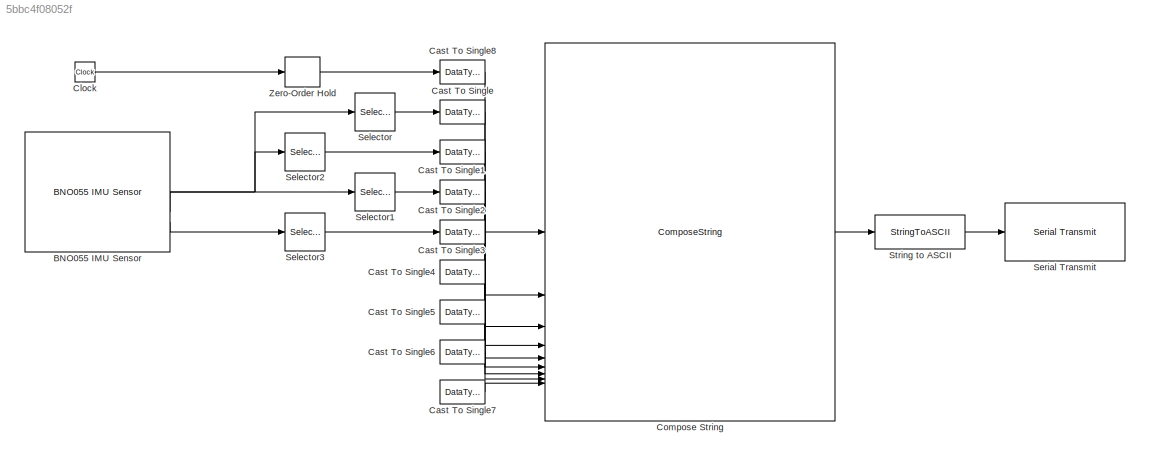
MODEL slx_5bbc4f08052f
KIND model
CONFIG AbsTol = auto
CONFIG EnableMultiTasking = on
CONFIG FixedStep = auto
CONFIG MaxStep = auto
CONFIG MinStep = auto
CONFIG RelTol = 1e-3
CONFIG SampleTimeConstraint = Unconstrained
CONFIG SolverName = ode45
CONFIG StartTime = 0.0
CONFIG StopTime = 10.0
BLOCK [Reference] BNO055 IMU Sensor  REF=arduinosensorlib/BNO055 IMU Sensor
  SourceBlock = arduinosensorlib/BNO055 IMU Sensor
  SourceType = BNO055
BLOCK [DataTypeConversion] Cast To Single
  OutDataTypeStr = single
  RndMeth = Floor
  SaturateOnIntegerOverflow = off
BLOCK [DataTypeConversion] Cast To Single1
  OutDataTypeStr = single
  RndMeth = Floor
  SaturateOnIntegerOverflow = off
BLOCK [DataTypeConversion] Cast To Single2
  OutDataTypeStr = single
  RndMeth = Floor
  SaturateOnIntegerOverflow = off
BLOCK [DataTypeConversion] Cast To Single3
  OutDataTypeStr = single
  RndMeth = Floor
  SaturateOnIntegerOverflow = off
BLOCK [DataTypeConversion] Cast To Single4
  Commented = on
  OutDataTypeStr = single
  RndMeth = Floor
  SaturateOnIntegerOverflow = off
BLOCK [DataTypeConversion] Cast To Single5
  Commented = on
  OutDataTypeStr = single
  RndMeth = Floor
  SaturateOnIntegerOverflow = off
BLOCK [DataTypeConversion] Cast To Single6
  Commented = on
  OutDataTypeStr = single
  RndMeth = Floor
  SaturateOnIntegerOverflow = off
BLOCK [DataTypeConversion] Cast To Single7
  Commented = on
  OutDataTypeStr = single
  RndMeth = Floor
  SaturateOnIntegerOverflow = off
BLOCK [DataTypeConversion] Cast To Single8
  OutDataTypeStr = single
  RndMeth = Floor
  SaturateOnIntegerOverflow = off
BLOCK [Clock] Clock
  Decimation = 3
BLOCK [ComposeString] Compose String
  Format = "A,%.3f,%.2f,%.2f,%.2f,%.2f,%.2f,%.2f,%.2f,%.2f,Z\n"
BLOCK [Selector] Selector
  IndexOptions = Index vector (dialog)
  Indices = [1]
  InputPortWidth = 3
  OutputSizes = 1
BLOCK [Selector] Selector1
  IndexOptions = Index vector (dialog)
  Indices = [3]
  InputPortWidth = 3
  OutputSizes = 1
BLOCK [Selector] Selector2
  IndexOptions = Index vector (dialog)
  Indices = [2]
  InputPortWidth = 3
  OutputSizes = 1
BLOCK [Selector] Selector3
  IndexOptions = Index vector (dialog)
  Indices = [3]
  InputPortWidth = 3
  OutputSizes = 1
BLOCK [Reference] Serial Transmit  REF=arduinolib/Serial Transmit
  SourceBlock = arduinolib/Serial Transmit
  SourceType = Arduino Serial Transmit
BLOCK [StringToASCII] String to ASCII
  OutputVectorSize = 64
BLOCK [ZeroOrderHold] Zero-Order Hold
  SampleTime = 1/100
NET BNO055 IMU Sensor:1 -> Selector2:1, Selector:1
LINE BNO055 IMU Sensor:2 -> Selector1:1
LINE BNO055 IMU Sensor:3 -> Selector3:1
LINE Cast To Single1:1 -> Compose String:3
LINE Cast To Single2:1 -> Compose String:4
LINE Cast To Single3:1 -> Compose String:5
LINE Cast To Single4:1 -> Compose String:6
LINE Cast To Single5:1 -> Compose String:7
LINE Cast To Single6:1 -> Compose String:8
LINE Cast To Single7:1 -> Compose String:9
LINE Cast To Single8:1 -> Compose String:1
LINE Cast To Single:1 -> Compose String:2
LINE Clock:1 -> Zero-Order Hold:1
LINE Compose String:1 -> String to ASCII:1
LINE Selector1:1 -> Cast To Single2:1
LINE Selector2:1 -> Cast To Single1:1
LINE Selector3:1 -> Cast To Single3:1
LINE Selector:1 -> Cast To Single:1
LINE String to ASCII:1 -> Serial Transmit:1
LINE Zero-Order Hold:1 -> Cast To Single8:1
note: NET lines group one-source signal fan-out (src -> all destinations, sorted); 1:1 wires keep LINE
